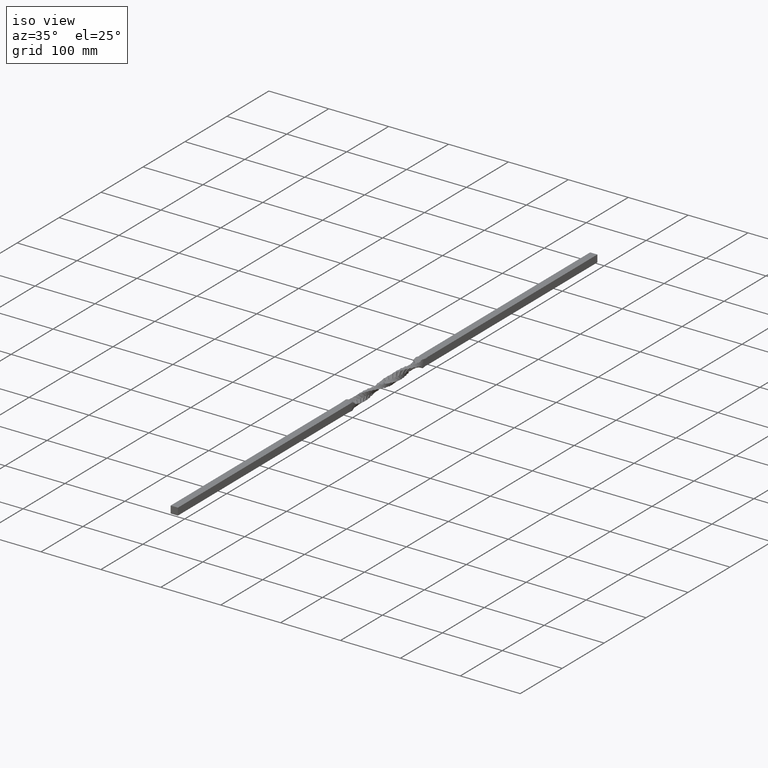
[diagram: clean part render]
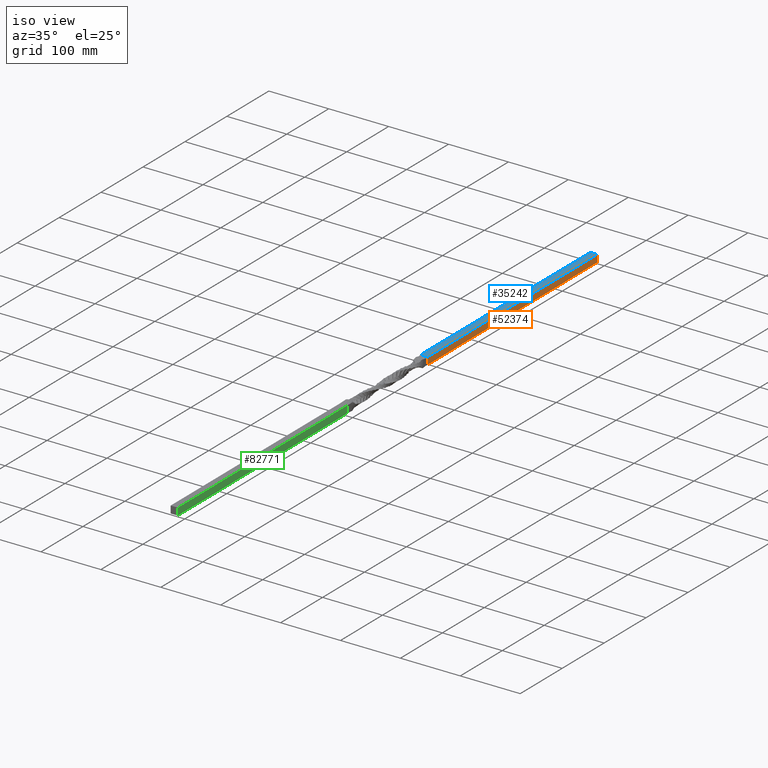
[diagram: same view with three faces highlighted in distinct colors, each labeled with its STEP entity id]
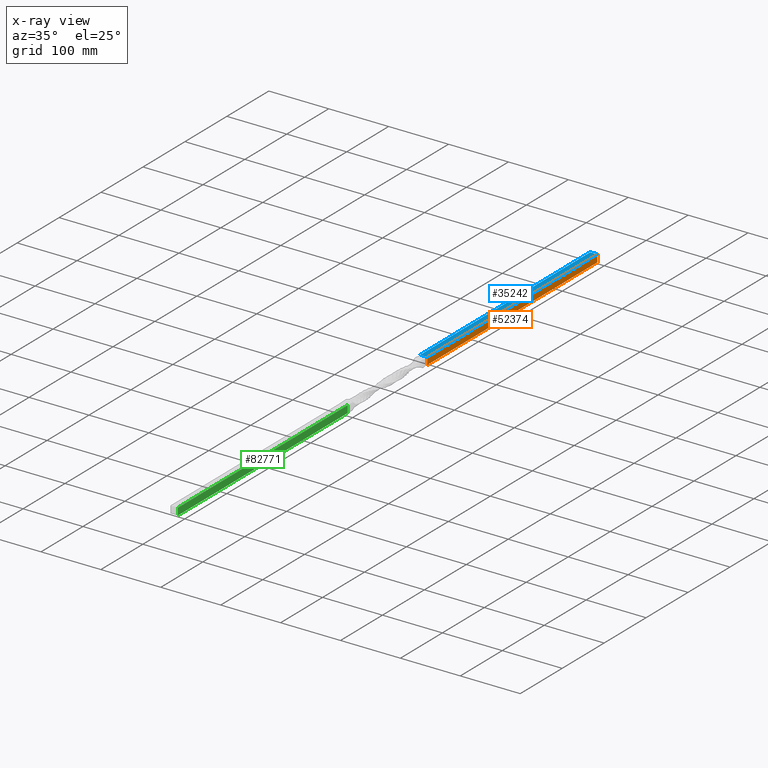
[diagram: x-ray of the same camera — body ghosted, the three highlighted faces saturated]
A machine part, iso view with three faces highlighted in distinct colors.
The next image is the same camera in x-ray (body ghosted, the three faces saturated) — at least one of them is partly hidden behind the body in this view.
Their STEP definitions:

[orange] entity #52374 — the highlighted planar face has unit normal (-1, 0, 0).
#35 = CARTESIAN_POINT ( 'NONE',  ( 6.000000000000011546, 170.0000000000000000, 6.000000000000008882 ) ) ;
#904 = CARTESIAN_POINT ( 'NONE',  ( 6.000000000000011546, 575.0000000000001137, 5.999999999999991118 ) ) ;
#4627 = VECTOR ( 'NONE', #37832, 1000.000000000000000 ) ;
#6525 = VERTEX_POINT ( 'NONE', #15634 ) ;
#8768 = VERTEX_POINT ( 'NONE', #25470 ) ;
#8959 = EDGE_LOOP ( 'NONE', ( #80465, #15139, #57235, #83699, #64595, #58657 ) ) ;
#9455 = LINE ( 'NONE', #904, #85059 ) ;
#14042 = VECTOR ( 'NONE', #26021, 1000.000000000000000 ) ;
#15139 = ORIENTED_EDGE ( 'NONE', *, *, #63778, .T. ) ;
#15634 = CARTESIAN_POINT ( 'NONE',  ( 6.000000000000011546, 170.0000000000000000, 4.862567756375309358 ) ) ;
#16216 = VERTEX_POINT ( 'NONE', #38426 ) ;
#19223 = DIRECTION ( 'NONE',  ( 0.000000000000000000, 0.000000000000000000, -1.000000000000000000 ) ) ;
#19593 = CARTESIAN_POINT ( 'NONE',  ( 6.000000000000011546, 575.0000000000001137, 5.999999999999991118 ) ) ;
#22063 = VECTOR ( 'NONE', #60117, 1000.000000000000000 ) ;
#23256 = CARTESIAN_POINT ( 'NONE',  ( 6.000000000000011546, 575.0000000000001137, -5.999999999999991118 ) ) ;
#25197 = AXIS2_PLACEMENT_3D ( 'NONE', #19593, #80018, #73543 ) ;
#25470 = CARTESIAN_POINT ( 'NONE',  ( 6.000000000000011546, 575.0000000000001137, -5.999999999999991118 ) ) ;
#26021 = DIRECTION ( 'NONE',  ( 0.000000000000000000, 0.000000000000000000, -1.000000000000000000 ) ) ;
#29723 = CARTESIAN_POINT ( 'NONE',  ( 6.000000000000011546, 170.0000000000000000, -4.776023172793093075 ) ) ;
#36067 = LINE ( 'NONE', #53301, #14042 ) ;
#37832 = DIRECTION ( 'NONE',  ( -0.000000000000000000, -1.000000000000000000, -0.000000000000000000 ) ) ;
#38426 = CARTESIAN_POINT ( 'NONE',  ( 6.000000000000011546, 170.0000000000000000, -5.999999999999991118 ) ) ;
#39106 = LINE ( 'NONE', #23256, #62172 ) ;
#39694 = EDGE_CURVE ( 'NONE', #85689, #16216, #39913, .T. ) ;
#39913 = LINE ( 'NONE', #35, #22063 ) ;
#41300 = LINE ( 'NONE', #44322, #4627 ) ;
#44266 = EDGE_CURVE ( 'NONE', #77093, #8768, #9455, .T. ) ;
#44322 = CARTESIAN_POINT ( 'NONE',  ( 6.000000000000011546, 575.0000000000001137, 5.999999999999991118 ) ) ;
#48165 = VECTOR ( 'NONE', #19223, 1000.000000000000000 ) ;
#49071 = EDGE_CURVE ( 'NONE', #57416, #6525, #71189, .T. ) ;
#52374 = ADVANCED_FACE ( 'NONE', ( #59402 ), #86243, .F. ) ;
#53301 = CARTESIAN_POINT ( 'NONE',  ( 6.000000000000011546, 170.0000000000000000, 6.000000000000008882 ) ) ;
#55574 = DIRECTION ( 'NONE',  ( -0.000000000000000000, -1.000000000000000000, -0.000000000000000000 ) ) ;
#57235 = ORIENTED_EDGE ( 'NONE', *, *, #39694, .T. ) ;
#57416 = VERTEX_POINT ( 'NONE', #77215 ) ;
#58298 = CARTESIAN_POINT ( 'NONE',  ( 6.000000000000011546, 575.0000000000001137, 5.999999999999991118 ) ) ;
#58657 = ORIENTED_EDGE ( 'NONE', *, *, #62754, .T. ) ;
#59402 = FACE_OUTER_BOUND ( 'NONE', #8959, .T. ) ;
#60117 = DIRECTION ( 'NONE',  ( 0.000000000000000000, 0.000000000000000000, -1.000000000000000000 ) ) ;
#62172 = VECTOR ( 'NONE', #55574, 1000.000000000000000 ) ;
#62754 = EDGE_CURVE ( 'NONE', #77093, #57416, #41300, .T. ) ;
#63778 = EDGE_CURVE ( 'NONE', #6525, #85689, #36067, .T. ) ;
#64595 = ORIENTED_EDGE ( 'NONE', *, *, #44266, .F. ) ;
#68275 = DIRECTION ( 'NONE',  ( 0.000000000000000000, 0.000000000000000000, -1.000000000000000000 ) ) ;
#69281 = EDGE_CURVE ( 'NONE', #8768, #16216, #39106, .T. ) ;
#71189 = LINE ( 'NONE', #79945, #48165 ) ;
#73543 = DIRECTION ( 'NONE',  ( 0.000000000000000000, 0.000000000000000000, 1.000000000000000000 ) ) ;
#77093 = VERTEX_POINT ( 'NONE', #58298 ) ;
#77215 = CARTESIAN_POINT ( 'NONE',  ( 6.000000000000011546, 170.0000000000000000, 5.999999999999991118 ) ) ;
#79945 = CARTESIAN_POINT ( 'NONE',  ( 6.000000000000011546, 170.0000000000000000, 6.000000000000008882 ) ) ;
#80018 = DIRECTION ( 'NONE',  ( -1.000000000000000000, 0.000000000000000000, 0.000000000000000000 ) ) ;
#80465 = ORIENTED_EDGE ( 'NONE', *, *, #49071, .T. ) ;
#83699 = ORIENTED_EDGE ( 'NONE', *, *, #69281, .F. ) ;
#85059 = VECTOR ( 'NONE', #68275, 1000.000000000000000 ) ;
#85689 = VERTEX_POINT ( 'NONE', #29723 ) ;
#86243 = PLANE ( 'NONE',  #25197 ) ;

[blue] entity #35242 — the highlighted planar face has unit normal (0, 0, -1).
#822 = CARTESIAN_POINT ( 'NONE',  ( -5.999999999999988454, 170.0000000000000000, 6.000000000000008882 ) ) ;
#1374 = VECTOR ( 'NONE', #50903, 1000.000000000000000 ) ;
#4588 = VECTOR ( 'NONE', #86960, 1000.000000000000000 ) ;
#4627 = VECTOR ( 'NONE', #37832, 1000.000000000000000 ) ;
#5724 = EDGE_CURVE ( 'NONE', #30248, #77093, #21308, .T. ) ;
#6054 = DIRECTION ( 'NONE',  ( 0.000000000000000000, 0.000000000000000000, -1.000000000000000000 ) ) ;
#11386 = CARTESIAN_POINT ( 'NONE',  ( -6.000000000000011546, 575.0000000000001137, 5.999999999999991118 ) ) ;
#18108 = DIRECTION ( 'NONE',  ( 1.000000000000000000, 0.000000000000000000, 0.000000000000000000 ) ) ;
#20085 = EDGE_CURVE ( 'NONE', #30248, #29520, #83036, .T. ) ;
#21308 = LINE ( 'NONE', #11386, #84307 ) ;
#22046 = ORIENTED_EDGE ( 'NONE', *, *, #5724, .F. ) ;
#25373 = CARTESIAN_POINT ( 'NONE',  ( -6.000000000000011546, 575.0000000000001137, 5.999999999999991118 ) ) ;
#25983 = PLANE ( 'NONE',  #58219 ) ;
#29520 = VERTEX_POINT ( 'NONE', #80586 ) ;
#30248 = VERTEX_POINT ( 'NONE', #82708 ) ;
#35242 = ADVANCED_FACE ( 'NONE', ( #70318 ), #25983, .F. ) ;
#37832 = DIRECTION ( 'NONE',  ( -0.000000000000000000, -1.000000000000000000, -0.000000000000000000 ) ) ;
#38569 = DIRECTION ( 'NONE',  ( -1.000000000000000000, 0.000000000000000000, -0.000000000000000000 ) ) ;
#41300 = LINE ( 'NONE', #44322, #4627 ) ;
#44305 = EDGE_LOOP ( 'NONE', ( #86741, #76040, #22046, #73861 ) ) ;
#44322 = CARTESIAN_POINT ( 'NONE',  ( 6.000000000000011546, 575.0000000000001137, 5.999999999999991118 ) ) ;
#46172 = CARTESIAN_POINT ( 'NONE',  ( -6.000000000000011546, 575.0000000000001137, 5.999999999999991118 ) ) ;
#50673 = LINE ( 'NONE', #822, #1374 ) ;
#50903 = DIRECTION ( 'NONE',  ( 1.000000000000000000, 0.000000000000000000, 0.000000000000000000 ) ) ;
#57416 = VERTEX_POINT ( 'NONE', #77215 ) ;
#58219 = AXIS2_PLACEMENT_3D ( 'NONE', #25373, #6054, #38569 ) ;
#58298 = CARTESIAN_POINT ( 'NONE',  ( 6.000000000000011546, 575.0000000000001137, 5.999999999999991118 ) ) ;
#62754 = EDGE_CURVE ( 'NONE', #77093, #57416, #41300, .T. ) ;
#70318 = FACE_OUTER_BOUND ( 'NONE', #44305, .T. ) ;
#73861 = ORIENTED_EDGE ( 'NONE', *, *, #20085, .T. ) ;
#74860 = EDGE_CURVE ( 'NONE', #29520, #57416, #50673, .T. ) ;
#76040 = ORIENTED_EDGE ( 'NONE', *, *, #62754, .F. ) ;
#77093 = VERTEX_POINT ( 'NONE', #58298 ) ;
#77215 = CARTESIAN_POINT ( 'NONE',  ( 6.000000000000011546, 170.0000000000000000, 5.999999999999991118 ) ) ;
#80586 = CARTESIAN_POINT ( 'NONE',  ( -5.999999999999988454, 170.0000000000000000, 6.000000000000008882 ) ) ;
#82708 = CARTESIAN_POINT ( 'NONE',  ( -6.000000000000011546, 575.0000000000001137, 5.999999999999991118 ) ) ;
#83036 = LINE ( 'NONE', #46172, #4588 ) ;
#84307 = VECTOR ( 'NONE', #18108, 1000.000000000000000 ) ;
#86741 = ORIENTED_EDGE ( 'NONE', *, *, #74860, .T. ) ;
#86960 = DIRECTION ( 'NONE',  ( -0.000000000000000000, -1.000000000000000000, -0.000000000000000000 ) ) ;

[green] entity #82771 — the highlighted planar face has unit normal (-1, 0, -0).
#369 = VERTEX_POINT ( 'NONE', #24973 ) ;
#2650 = ORIENTED_EDGE ( 'NONE', *, *, #7386, .T. ) ;
#7386 = EDGE_CURVE ( 'NONE', #74263, #84354, #51799, .T. ) ;
#11323 = CARTESIAN_POINT ( 'NONE',  ( 5.999999999999999112, -425.0000000000000568, 6.000000000000000888 ) ) ;
#14573 = LINE ( 'NONE', #34166, #59689 ) ;
#16163 = CARTESIAN_POINT ( 'NONE',  ( 5.999999999999997335, -20.00000000000000000, 5.999999999999999112 ) ) ;
#16551 = EDGE_CURVE ( 'NONE', #74263, #369, #37883, .T. ) ;
#18046 = DIRECTION ( 'NONE',  ( -1.000000000000000000, 0.000000000000000000, -0.000000000000000000 ) ) ;
#20452 = VERTEX_POINT ( 'NONE', #16163 ) ;
#20641 = EDGE_CURVE ( 'NONE', #369, #20452, #52792, .T. ) ;
#24973 = CARTESIAN_POINT ( 'NONE',  ( 5.999999999999999112, -425.0000000000000568, 6.000000000000000888 ) ) ;
#25524 = DIRECTION ( 'NONE',  ( -0.000000000000000000, 1.000000000000000000, -0.000000000000000000 ) ) ;
#26392 = VECTOR ( 'NONE', #51204, 1000.000000000000000 ) ;
#27031 = CARTESIAN_POINT ( 'NONE',  ( 5.999999999999999112, -425.0000000000000568, -6.000000000000000888 ) ) ;
#33947 = VECTOR ( 'NONE', #36857, 1000.000000000000000 ) ;
#34166 = CARTESIAN_POINT ( 'NONE',  ( 5.999999999999999112, -20.00000000000000000, -6.000000000000000888 ) ) ;
#36857 = DIRECTION ( 'NONE',  ( -0.000000000000000000, 1.000000000000000000, -0.000000000000000000 ) ) ;
#37883 = LINE ( 'NONE', #44166, #26392 ) ;
#43374 = ORIENTED_EDGE ( 'NONE', *, *, #20641, .F. ) ;
#44166 = CARTESIAN_POINT ( 'NONE',  ( 5.999999999999999112, -425.0000000000000568, 6.000000000000000888 ) ) ;
#44484 = DIRECTION ( 'NONE',  ( -0.000000000000000000, 0.000000000000000000, 1.000000000000000000 ) ) ;
#49084 = EDGE_CURVE ( 'NONE', #84354, #20452, #14573, .T. ) ;
#50091 = CARTESIAN_POINT ( 'NONE',  ( 5.999999999999999112, -425.0000000000000568, -6.000000000000000888 ) ) ;
#51204 = DIRECTION ( 'NONE',  ( -0.000000000000000000, -0.000000000000000000, 1.000000000000000000 ) ) ;
#51799 = LINE ( 'NONE', #50091, #33947 ) ;
#52792 = LINE ( 'NONE', #79770, #82135 ) ;
#56819 = FACE_OUTER_BOUND ( 'NONE', #77564, .T. ) ;
#59405 = CARTESIAN_POINT ( 'NONE',  ( 5.999999999999999112, -20.00000000000000000, -6.000000000000000888 ) ) ;
#59689 = VECTOR ( 'NONE', #61716, 1000.000000000000000 ) ;
#60570 = ORIENTED_EDGE ( 'NONE', *, *, #16551, .F. ) ;
#61716 = DIRECTION ( 'NONE',  ( -1.445602896647339163E-16, 0.000000000000000000, 1.000000000000000000 ) ) ;
#63207 = ORIENTED_EDGE ( 'NONE', *, *, #49084, .T. ) ;
#73257 = AXIS2_PLACEMENT_3D ( 'NONE', #11323, #18046, #44484 ) ;
#74263 = VERTEX_POINT ( 'NONE', #27031 ) ;
#77564 = EDGE_LOOP ( 'NONE', ( #63207, #43374, #60570, #2650 ) ) ;
#79770 = CARTESIAN_POINT ( 'NONE',  ( 5.999999999999999112, -425.0000000000000568, 6.000000000000000888 ) ) ;
#82135 = VECTOR ( 'NONE', #25524, 1000.000000000000000 ) ;
#82771 = ADVANCED_FACE ( 'NONE', ( #56819 ), #85251, .F. ) ;
#84354 = VERTEX_POINT ( 'NONE', #59405 ) ;
#85251 = PLANE ( 'NONE',  #73257 ) ;